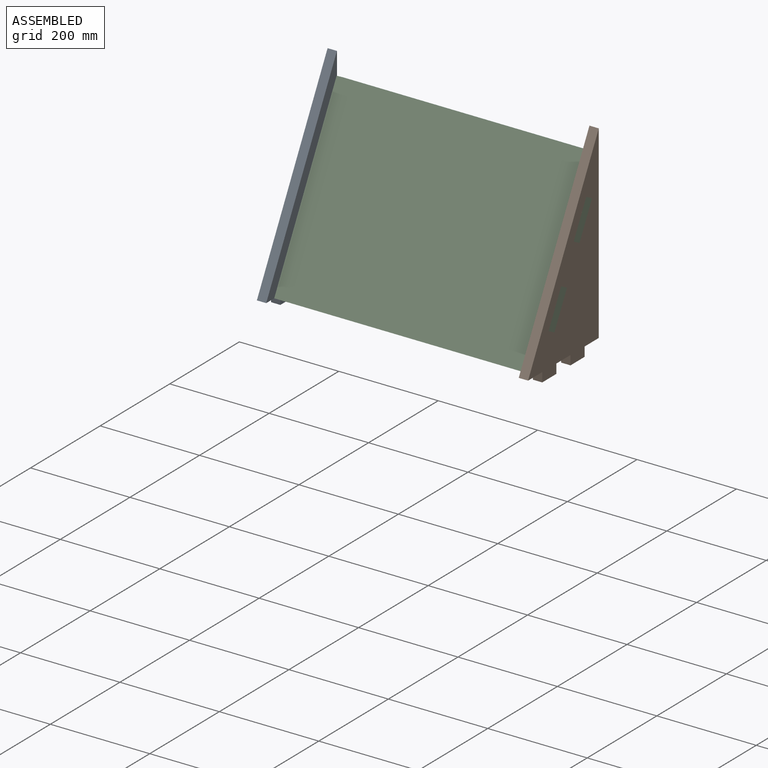
[diagram: assembled view]
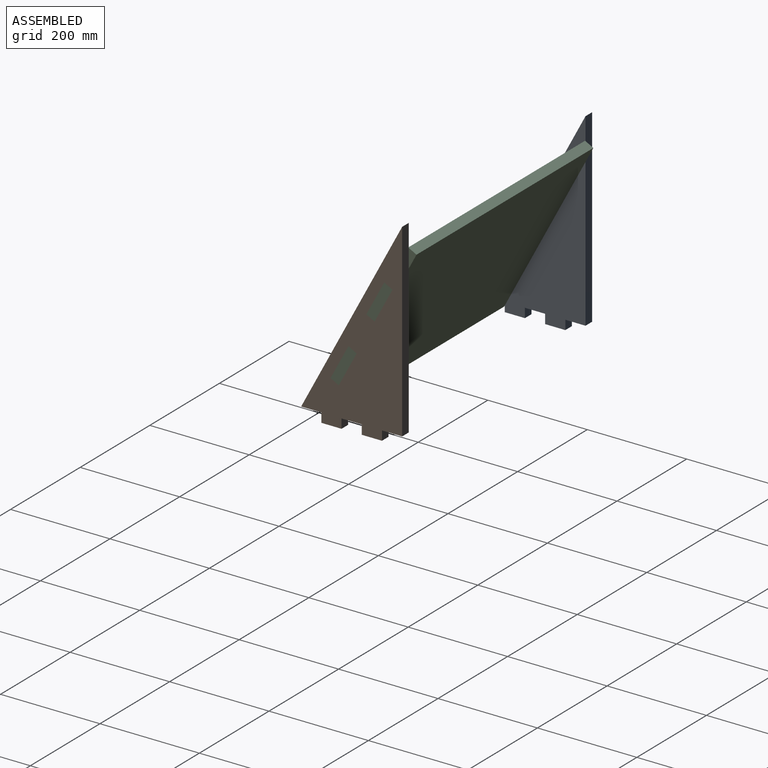
[diagram: assembled view, second angle]
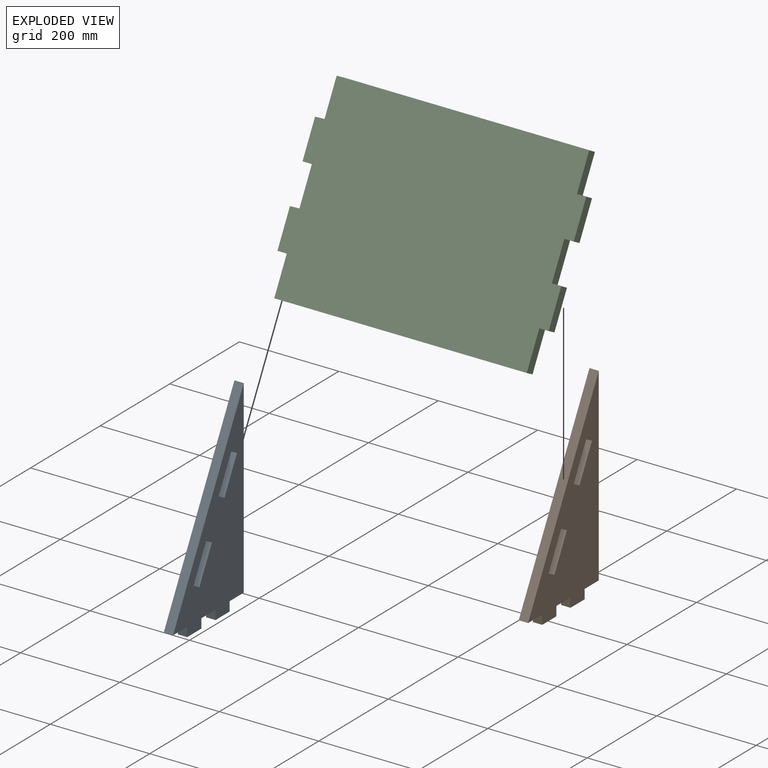
[diagram: exploded view]
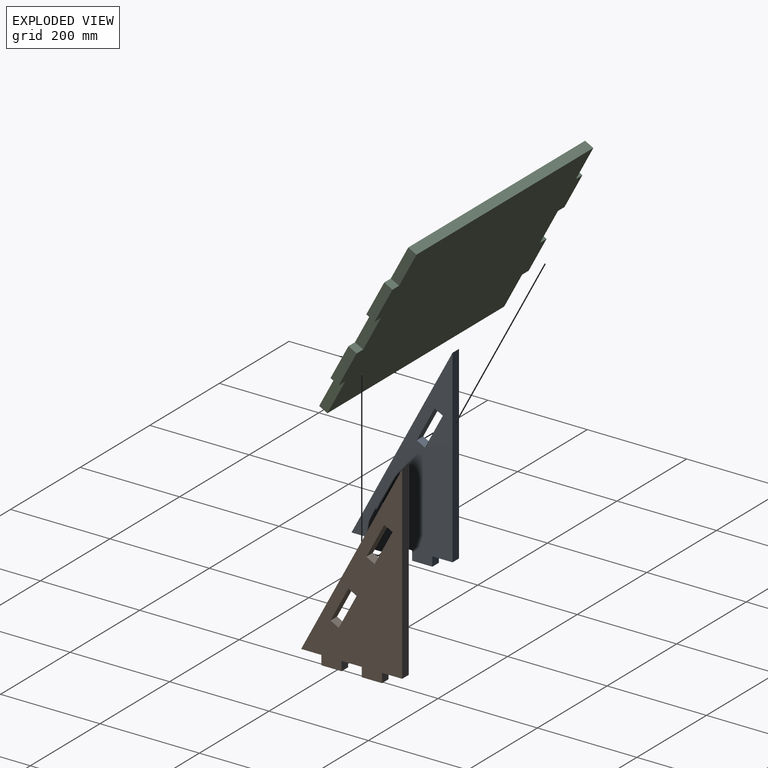
[diagram: exploded view, second angle]
ASSEMBLY  parts=3 mates=2
PART A: 21 faces, bbox 18.8x203.2x399.8 mm
  f0: plane 67.56x36.03mm, normal (0,0.88,-0.47), area 1439.2mm2, adj f1,f18,f19,f20
  f1: plane 18.8x16.58mm, normal (0,-0.47,-0.88), area 353.3mm2, adj f0,f2,f19,f20
  f2: plane 67.56x36.03mm, normal (0,-0.88,0.47), area 1439.2mm2, adj f1,f18,f19,f20
  f3: plane 18.8x16.58mm, normal (0,0.47,0.88), area 353.3mm2, adj f4,f16,f19,f20
  f4: plane 67.56x36.03mm, normal (0,0.88,-0.47), area 1439.2mm2, adj f3,f5,f19,f20
  f5: plane 18.8x16.58mm, normal (0,-0.47,-0.88), area 353.3mm2, adj f4,f16,f19,f20
  f6: plane 18.8x18.8mm, normal (0,1,0), area 353.3mm2, adj f7,f17,f19,f20
  f7: plane 40.64x18.8mm, normal (0,0,-1), area 763.9mm2, adj f6,f8,f19,f20
  f8: plane 18.8x18.8mm, normal (0,-1,0), area 353.3mm2, adj f7,f9,f19,f20
  f9: plane 40.64x18.8mm, normal (0,0,-1), area 763.9mm2, adj f8,f10,f19,f20
  f10: plane 18.8x18.8mm, normal (0,1,0), area 353.3mm2, adj f9,f11,f19,f20
  f11: plane 40.64x18.8mm, normal (0,0,-1), area 763.9mm2, adj f10,f12,f19,f20
  f12: plane 381x18.8mm, normal (0,1,0), area 7161.3mm2, adj f11,f13,f19,f20
  f13: plane 381x203.2mm, normal (0,-0.88,0.47), area 8116.1mm2, adj f12,f14,f19,f20
  f14: plane 40.64x18.8mm, normal (0,0,-1), area 763.9mm2, adj f13,f15,f19,f20
  f15: plane 18.8x18.8mm, normal (0,-1,0), area 353.3mm2, adj f14,f17,f19,f20
  f16: plane 67.56x36.03mm, normal (0,-0.88,0.47), area 1439.2mm2, adj f3,f5,f19,f20
  f17: plane 40.64x18.8mm, normal (0,0,-1), area 763.9mm2, adj f6,f15,f19,f20
  f18: plane 18.8x16.58mm, normal (0,0.47,0.88), area 353.3mm2, adj f0,f2,f19,f20
  f19: plane 399.8x203.2mm, normal (1,0,0), area 37358.9mm2, adj f0,f1,f2,f3,f4,f5,f6,f7
  f20: plane 399.8x203.2mm, normal (-1,0,0), area 37358.9mm2, adj f0,f1,f2,f3,f4,f5,f6,f7
PART B: same geometry as A
PART C: 22 faces, bbox 545.6x18.8x381 mm
  f0: plane 508x18.8mm, normal (0,0,1), area 9548.4mm2, adj f1,f19,f20,f21
  f1: plane 74.72x18.8mm, normal (-1,0,0), area 1404.4mm2, adj f0,f2,f20,f21
  f2: plane 18.8x18.8mm, normal (0,0,1), area 353.3mm2, adj f1,f3,f20,f21
  f3: plane 76.57x18.8mm, normal (-1,0,0), area 1439.2mm2, adj f2,f4,f20,f21
  f4: plane 18.8x18.8mm, normal (0,0,-1), area 353.3mm2, adj f3,f5,f20,f21
  f5: plane 76.57x18.8mm, normal (-1,0,0), area 1439.2mm2, adj f4,f6,f20,f21
  f6: plane 18.8x18.8mm, normal (0,0,1), area 353.3mm2, adj f5,f7,f20,f21
  f7: plane 76.57x18.8mm, normal (-1,0,0), area 1439.2mm2, adj f6,f8,f20,f21
  f8: plane 18.8x18.8mm, normal (0,0,-1), area 353.3mm2, adj f7,f9,f20,f21
  f9: plane 76.57x18.8mm, normal (-1,0,0), area 1439.2mm2, adj f8,f10,f20,f21
  f10: plane 508x18.8mm, normal (0,0,-1), area 9548.4mm2, adj f9,f11,f20,f21
  f11: plane 76.57x18.8mm, normal (1,0,0), area 1439.2mm2, adj f10,f12,f20,f21
  f12: plane 18.8x18.8mm, normal (0,0,-1), area 353.3mm2, adj f11,f13,f20,f21
  f13: plane 76.57x18.8mm, normal (1,0,0), area 1439.2mm2, adj f12,f14,f20,f21
  f14: plane 18.8x18.8mm, normal (0,0,1), area 353.3mm2, adj f13,f15,f20,f21
  f15: plane 76.57x18.8mm, normal (1,0,0), area 1439.2mm2, adj f14,f16,f20,f21
  f16: plane 18.8x18.8mm, normal (0,0,-1), area 353.3mm2, adj f15,f17,f20,f21
  f17: plane 76.57x18.8mm, normal (1,0,0), area 1439.2mm2, adj f16,f18,f20,f21
  f18: plane 18.8x18.8mm, normal (0,0,1), area 353.3mm2, adj f17,f19,f20,f21
  f19: plane 74.72x18.8mm, normal (1,0,0), area 1404.4mm2, adj f0,f18,f20,f21
  f20: plane 545.59x381mm, normal (0,-1,0), area 199304.9mm2, adj f0,f1,f2,f3,f4,f5,f6,f7
  f21: plane 545.59x381mm, normal (0,1,0), area 199304.9mm2, adj f0,f1,f2,f3,f4,f5,f6,f7
PLACE A t=(-415.59,18.98,37.34)mm
PLACE B t=(111.21,18.98,37.34)mm
PLACE C rot(axis=(-1,0,0),28.1deg) t=(-142.79,-54.29,197.84)mm
MATE fastened C.f2 <-> A.f1  axis (0,0.47,0.88) through (-415.59,-17.06,307.59)mm
MATE fastened B.f1 <-> C.f18  axis (0,0.47,0.88) through (130.01,-0.47,298.75)mm
